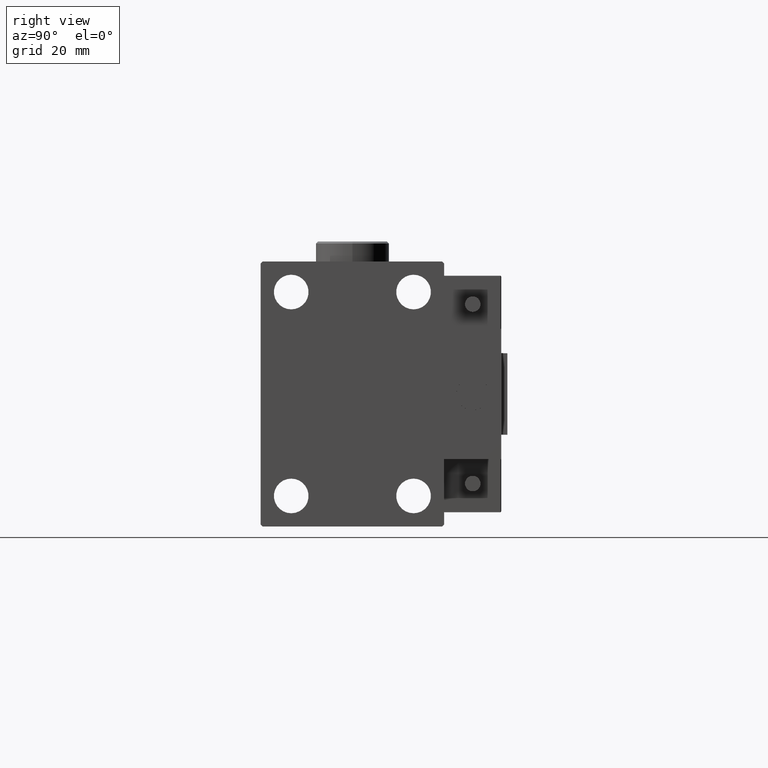
[diagram: clean part render]
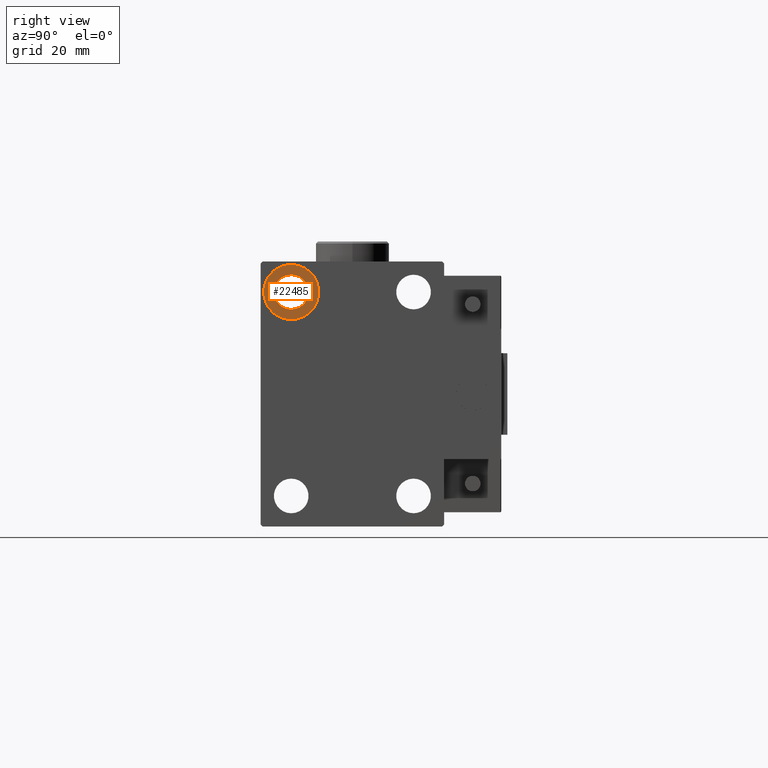
[diagram: same view with one face highlighted and labeled with its STEP entity id]
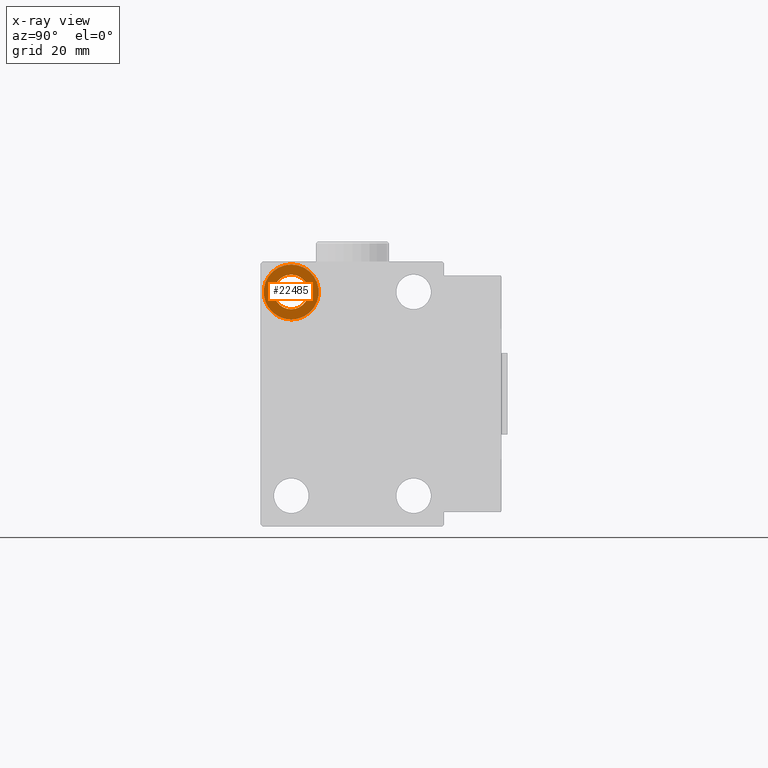
[diagram: x-ray of the same camera — body ghosted, the highlighted face saturated]
A machine part, right view. The second image highlights one B-rep face of the part: STEP entity #22485.
The next image is the same camera in x-ray: the body ghosted, the highlighted face saturated — about 0% of this face is hidden behind the body in this view.
In plain terms, the highlighted planar face has unit normal (1, 0, 0).
Its self-contained STEP definition (entity closure, byte-faithful):
#4068 = ORIENTED_EDGE ( 'NONE', *, *, #32639, .T. ) ;
#4380 = DIRECTION ( 'NONE',  ( -1.000000000000000000, -0.000000000000000000, -0.000000000000000000 ) ) ;
#6282 = CIRCLE ( 'NONE', #15461, 6.749999999999999112 ) ;
#6622 = EDGE_CURVE ( 'NONE', #18006, #16991, #24015, .T. ) ;
#6642 = DIRECTION ( 'NONE',  ( 0.000000000000000000, 0.000000000000000000, 1.000000000000000000 ) ) ;
#7234 = CARTESIAN_POINT ( 'NONE',  ( 71.00000000000001421, 0.000000000000000000, 0.000000000000000000 ) ) ;
#8234 = CARTESIAN_POINT ( 'NONE',  ( 71.00000000000001421, -14.99999999999999645, 20.75000000000000355 ) ) ;
#10078 = CARTESIAN_POINT ( 'NONE',  ( 71.00000000000001421, -14.99999999999999645, 31.75000000000000000 ) ) ;
#11140 = DIRECTION ( 'NONE',  ( 0.000000000000000000, 0.000000000000000000, 1.000000000000000000 ) ) ;
#14759 = EDGE_CURVE ( 'NONE', #31442, #42304, #6282, .T. ) ;
#14785 = AXIS2_PLACEMENT_3D ( 'NONE', #28119, #4380, #36194 ) ;
#15461 = AXIS2_PLACEMENT_3D ( 'NONE', #23068, #34816, #6642 ) ;
#16254 = PLANE ( 'NONE',  #19070 ) ;
#16321 = ORIENTED_EDGE ( 'NONE', *, *, #18961, .F. ) ;
#16991 = VERTEX_POINT ( 'NONE', #30587 ) ;
#18006 = VERTEX_POINT ( 'NONE', #8234 ) ;
#18961 = EDGE_CURVE ( 'NONE', #42304, #31442, #37251, .T. ) ;
#19070 = AXIS2_PLACEMENT_3D ( 'NONE', #7234, #40480, #11140 ) ;
#20402 = CARTESIAN_POINT ( 'NONE',  ( 71.00000000000001421, -14.99999999999999645, 25.00000000000000000 ) ) ;
#20449 = DIRECTION ( 'NONE',  ( 0.000000000000000000, 0.000000000000000000, -1.000000000000000000 ) ) ;
#22485 = ADVANCED_FACE ( 'NONE', ( #39284, #44130 ), #16254, .T. ) ;
#23068 = CARTESIAN_POINT ( 'NONE',  ( 71.00000000000001421, -14.99999999999999645, 25.00000000000000000 ) ) ;
#23605 = CARTESIAN_POINT ( 'NONE',  ( 71.00000000000001421, -14.99999999999999645, 25.00000000000000000 ) ) ;
#24015 = CIRCLE ( 'NONE', #33175, 4.249999999999996447 ) ;
#25151 = AXIS2_PLACEMENT_3D ( 'NONE', #20402, #25359, #32393 ) ;
#25359 = DIRECTION ( 'NONE',  ( -1.000000000000000000, -0.000000000000000000, -0.000000000000000000 ) ) ;
#25966 = CIRCLE ( 'NONE', #25151, 4.249999999999996447 ) ;
#26770 = ORIENTED_EDGE ( 'NONE', *, *, #6622, .T. ) ;
#28119 = CARTESIAN_POINT ( 'NONE',  ( 71.00000000000001421, -14.99999999999999645, 25.00000000000000000 ) ) ;
#30587 = CARTESIAN_POINT ( 'NONE',  ( 71.00000000000001421, -14.99999999999999645, 29.25000000000000000 ) ) ;
#31442 = VERTEX_POINT ( 'NONE', #10078 ) ;
#32393 = DIRECTION ( 'NONE',  ( 0.000000000000000000, 0.000000000000000000, -1.000000000000000000 ) ) ;
#32639 = EDGE_CURVE ( 'NONE', #16991, #18006, #25966, .T. ) ;
#33175 = AXIS2_PLACEMENT_3D ( 'NONE', #23605, #47324, #20449 ) ;
#34816 = DIRECTION ( 'NONE',  ( -1.000000000000000000, -0.000000000000000000, -0.000000000000000000 ) ) ;
#35689 = EDGE_LOOP ( 'NONE', ( #16321, #39917 ) ) ;
#36194 = DIRECTION ( 'NONE',  ( 0.000000000000000000, 0.000000000000000000, 1.000000000000000000 ) ) ;
#37251 = CIRCLE ( 'NONE', #14785, 6.749999999999999112 ) ;
#39284 = FACE_OUTER_BOUND ( 'NONE', #35689, .T. ) ;
#39917 = ORIENTED_EDGE ( 'NONE', *, *, #14759, .F. ) ;
#40480 = DIRECTION ( 'NONE',  ( 1.000000000000000000, 0.000000000000000000, -0.000000000000000000 ) ) ;
#42304 = VERTEX_POINT ( 'NONE', #50907 ) ;
#44130 = FACE_BOUND ( 'NONE', #50419, .T. ) ;
#47324 = DIRECTION ( 'NONE',  ( -1.000000000000000000, -0.000000000000000000, -0.000000000000000000 ) ) ;
#50419 = EDGE_LOOP ( 'NONE', ( #4068, #26770 ) ) ;
#50907 = CARTESIAN_POINT ( 'NONE',  ( 71.00000000000001421, -14.99999999999999645, 18.25000000000000355 ) ) ;